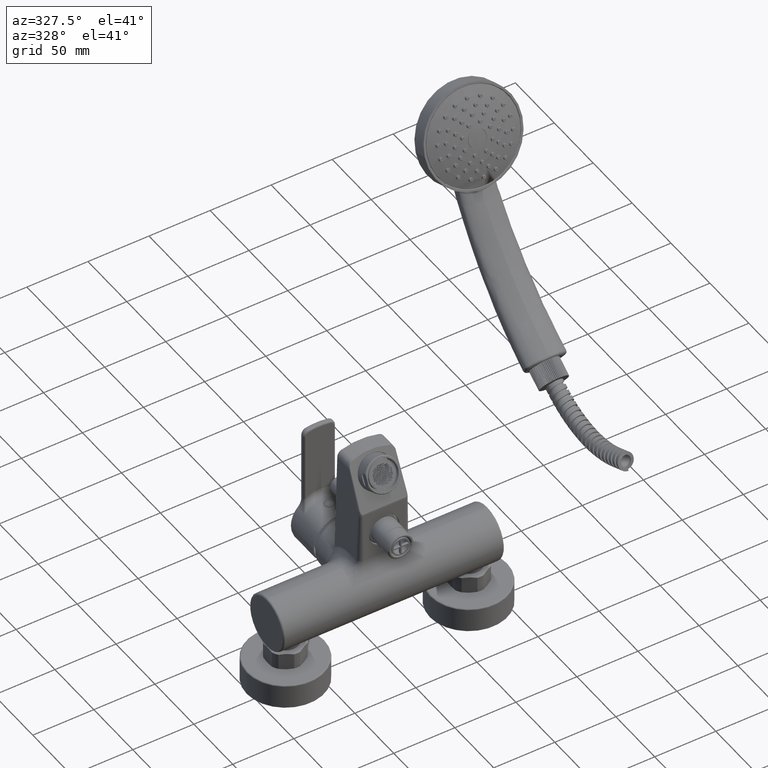
[diagram: clean part render]
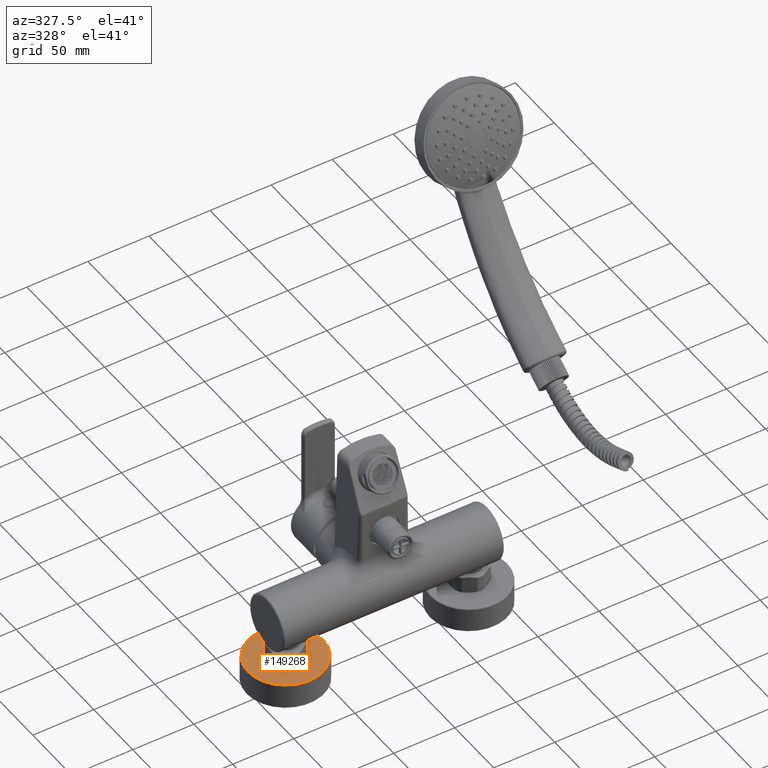
[diagram: same view with one face highlighted and labeled with its STEP entity id]
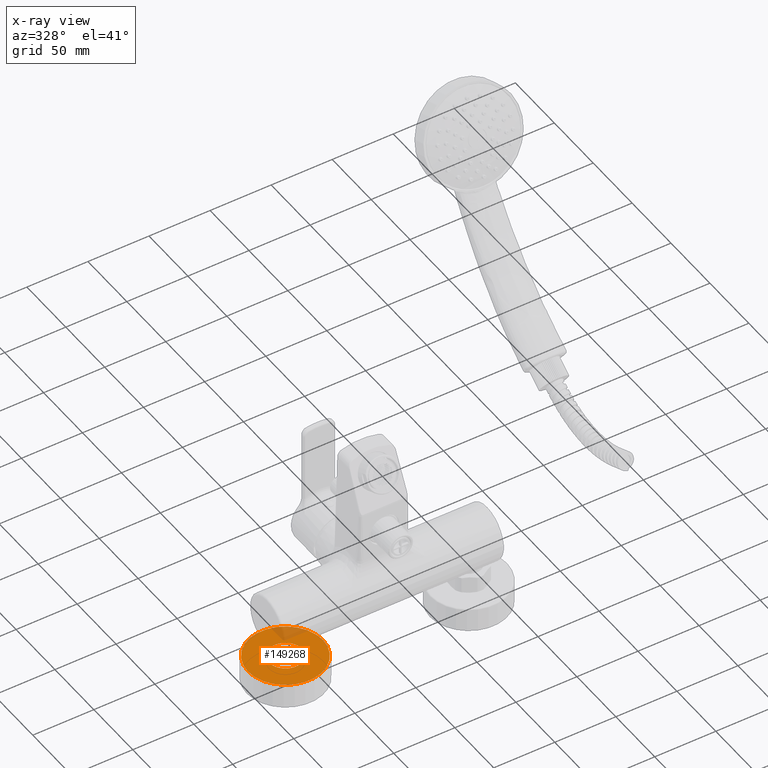
[diagram: x-ray of the same camera — body ghosted, the highlighted face saturated]
A machine part, auxiliary view. The second image highlights one B-rep face of the part: STEP entity #149268.
The next image is the same camera in x-ray: the body ghosted, the highlighted face saturated — about 9% of this face is hidden behind the body in this view.
In plain terms, the highlighted planar face has unit normal (0, 0, -1).
Its self-contained STEP definition (entity closure, byte-faithful):
#148979=CARTESIAN_POINT('',(-7.5E1,0.E0,-3.72E1));
#148980=DIRECTION('',(0.E0,0.E0,1.E0));
#148981=DIRECTION('',(1.E0,0.E0,0.E0));
#148982=AXIS2_PLACEMENT_3D('',#148979,#148980,#148981);
#148984=CARTESIAN_POINT('',(-7.5E1,0.E0,-3.72E1));
#148985=DIRECTION('',(0.E0,0.E0,1.E0));
#148986=DIRECTION('',(-1.E0,0.E0,0.E0));
#148987=AXIS2_PLACEMENT_3D('',#148984,#148985,#148986);
#148989=CARTESIAN_POINT('',(-7.5E1,0.E0,-3.72E1));
#148990=DIRECTION('',(0.E0,0.E0,1.E0));
#148991=DIRECTION('',(-1.E0,0.E0,0.E0));
#148992=AXIS2_PLACEMENT_3D('',#148989,#148990,#148991);
#148994=CARTESIAN_POINT('',(-7.5E1,0.E0,-3.72E1));
#148995=DIRECTION('',(0.E0,0.E0,1.E0));
#148996=DIRECTION('',(1.E0,0.E0,0.E0));
#148997=AXIS2_PLACEMENT_3D('',#148994,#148995,#148996);
#149151=CARTESIAN_POINT('',(-4.425E1,0.E0,-3.72E1));
#149152=CARTESIAN_POINT('',(-1.0575E2,0.E0,-3.72E1));
#149153=VERTEX_POINT('',#149151);
#149154=VERTEX_POINT('',#149152);
#149163=CARTESIAN_POINT('',(-8.85E1,0.E0,-3.72E1));
#149164=CARTESIAN_POINT('',(-6.15E1,0.E0,-3.72E1));
#149165=VERTEX_POINT('',#149163);
#149166=VERTEX_POINT('',#149164);
#149253=CARTESIAN_POINT('',(-7.5E1,0.E0,-3.72E1));
#149254=DIRECTION('',(0.E0,0.E0,-1.E0));
#149255=DIRECTION('',(-1.E0,0.E0,0.E0));
#149256=AXIS2_PLACEMENT_3D('',#149253,#149254,#149255);
#149257=PLANE('',#149256);
#149259=ORIENTED_EDGE('',*,*,#149258,.F.);
#149261=ORIENTED_EDGE('',*,*,#149260,.F.);
#149262=EDGE_LOOP('',(#149259,#149261));
#149263=FACE_OUTER_BOUND('',#149262,.F.);
#149264=ORIENTED_EDGE('',*,*,#149176,.T.);
#149265=ORIENTED_EDGE('',*,*,#149240,.T.);
#149266=EDGE_LOOP('',(#149264,#149265));
#149267=FACE_BOUND('',#149266,.F.);
#149268=ADVANCED_FACE('',(#149263,#149267),#149257,.F.);
#148983=CIRCLE('',#148982,3.075E1);
#148988=CIRCLE('',#148987,3.075E1);
#148993=CIRCLE('',#148992,1.35E1);
#148998=CIRCLE('',#148997,1.35E1);
#149176=EDGE_CURVE('',#149165,#149166,#148993,.T.);
#149240=EDGE_CURVE('',#149166,#149165,#148998,.T.);
#149258=EDGE_CURVE('',#149153,#149154,#148983,.T.);
#149260=EDGE_CURVE('',#149154,#149153,#148988,.T.);